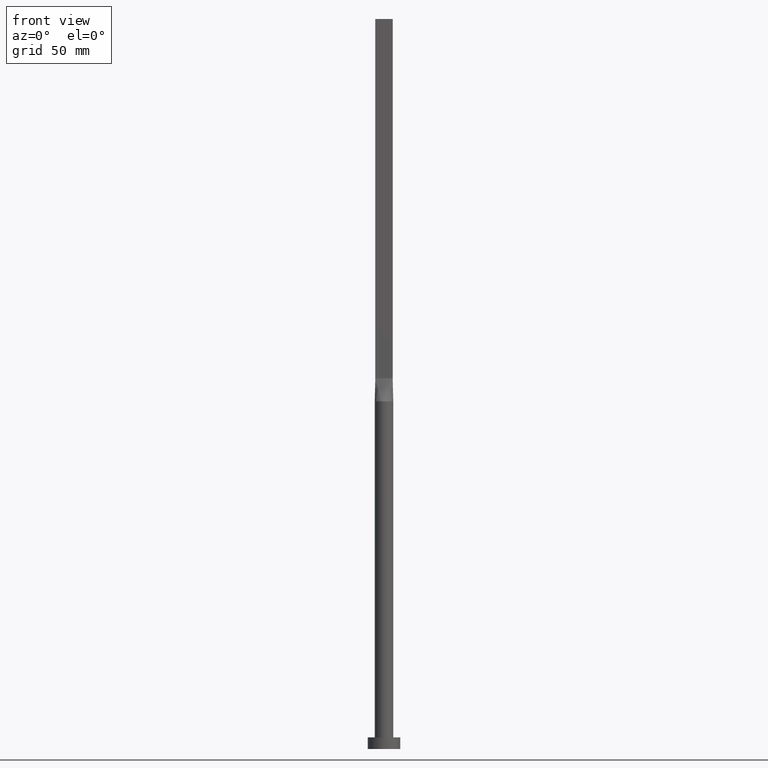
[diagram: clean part render]
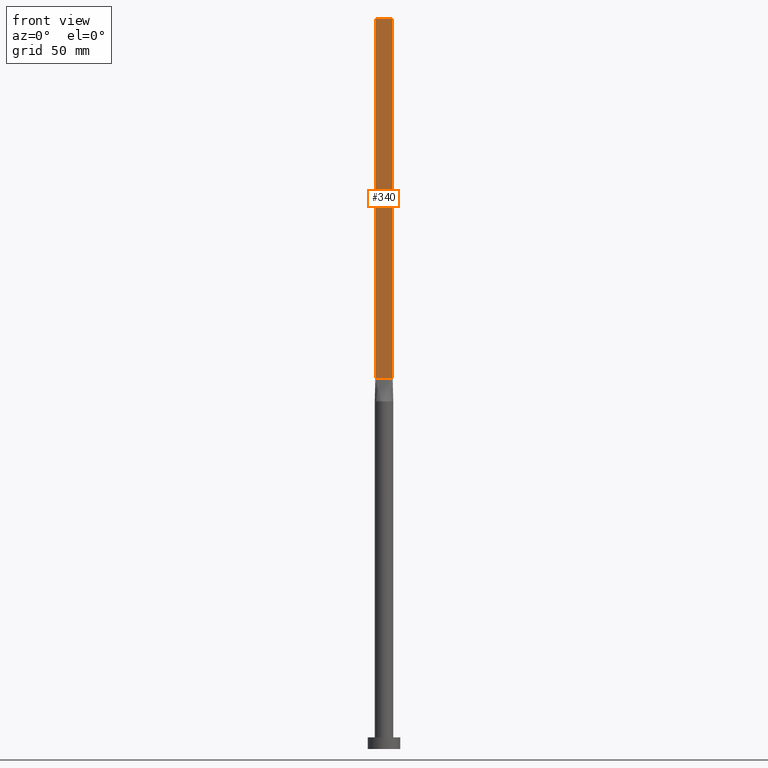
[diagram: same view with one face highlighted and labeled with its STEP entity id]
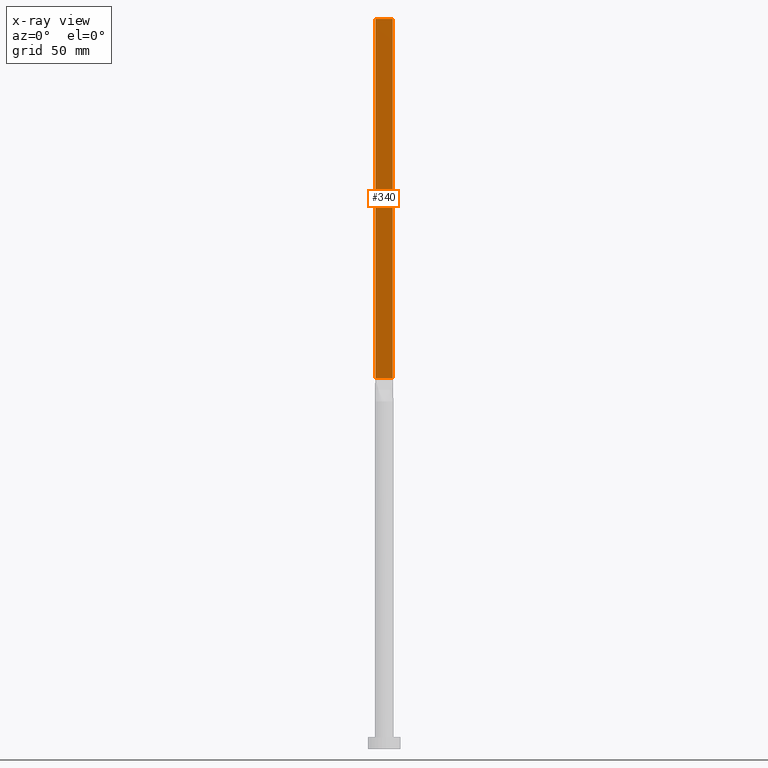
[diagram: x-ray of the same camera — body ghosted, the highlighted face saturated]
A machine part, front view. The second image highlights one B-rep face of the part: STEP entity #340.
The next image is the same camera in x-ray: the body ghosted, the highlighted face saturated — about 0% of this face is hidden behind the body in this view.
In plain terms, the highlighted planar face has unit normal (0, 1, -0).
Its self-contained STEP definition (entity closure, byte-faithful):
#6 = ORIENTED_EDGE ( 'NONE', *, *, #313, .T. ) ;
#21 = VERTEX_POINT ( 'NONE', #71 ) ;
#22 = VECTOR ( 'NONE', #526, 1000.000000000000000 ) ;
#27 = DIRECTION ( 'NONE',  ( -1.000000000000000000, 5.782411586589357392E-17, 0.000000000000000000 ) ) ;
#41 = LINE ( 'NONE', #312, #277 ) ;
#52 = PLANE ( 'NONE',  #545 ) ;
#71 = CARTESIAN_POINT ( 'NONE',  ( -3.750000000000000000, -0.5999999999999993117, 160.0000000000000000 ) ) ;
#84 = CARTESIAN_POINT ( 'NONE',  ( 3.750000000000000000, -0.5999999999999997558, 315.0000000000000000 ) ) ;
#110 = VERTEX_POINT ( 'NONE', #304 ) ;
#153 = VERTEX_POINT ( 'NONE', #351 ) ;
#154 = EDGE_CURVE ( 'NONE', #21, #153, #480, .T. ) ;
#172 = DIRECTION ( 'NONE',  ( -0.000000000000000000, -0.000000000000000000, -1.000000000000000000 ) ) ;
#181 = EDGE_LOOP ( 'NONE', ( #421, #318, #429, #6 ) ) ;
#201 = CARTESIAN_POINT ( 'NONE',  ( -3.750000000000000000, -0.5999999999999993117, 315.0000000000000000 ) ) ;
#257 = DIRECTION ( 'NONE',  ( 1.000000000000000000, -5.782411586589357392E-17, 0.000000000000000000 ) ) ;
#262 = DIRECTION ( 'NONE',  ( 5.782411586589357392E-17, 1.000000000000000000, -0.000000000000000000 ) ) ;
#277 = VECTOR ( 'NONE', #496, 1000.000000000000000 ) ;
#304 = CARTESIAN_POINT ( 'NONE',  ( 3.750000000000000000, -0.5999999999999997558, 315.0000000000000000 ) ) ;
#312 = CARTESIAN_POINT ( 'NONE',  ( -3.750000000000000000, -0.5999999999999993117, 315.0000000000000000 ) ) ;
#313 = EDGE_CURVE ( 'NONE', #439, #21, #41, .T. ) ;
#318 = ORIENTED_EDGE ( 'NONE', *, *, #427, .F. ) ;
#331 = VECTOR ( 'NONE', #257, 1000.000000000000000 ) ;
#340 = ADVANCED_FACE ( 'NONE', ( #510 ), #52, .F. ) ;
#351 = CARTESIAN_POINT ( 'NONE',  ( 3.750000000000000000, -0.5999999999999997558, 160.0000000000000000 ) ) ;
#353 = CARTESIAN_POINT ( 'NONE',  ( -3.750000000000000000, -0.5999999999999993117, 160.0000000000000000 ) ) ;
#421 = ORIENTED_EDGE ( 'NONE', *, *, #154, .T. ) ;
#422 = EDGE_CURVE ( 'NONE', #439, #110, #534, .T. ) ;
#427 = EDGE_CURVE ( 'NONE', #110, #153, #488, .T. ) ;
#429 = ORIENTED_EDGE ( 'NONE', *, *, #422, .F. ) ;
#432 = VECTOR ( 'NONE', #172, 1000.000000000000000 ) ;
#439 = VERTEX_POINT ( 'NONE', #201 ) ;
#480 = LINE ( 'NONE', #353, #331 ) ;
#485 = CARTESIAN_POINT ( 'NONE',  ( -3.750000000000000000, -0.5999999999999993117, 315.0000000000000000 ) ) ;
#488 = LINE ( 'NONE', #84, #432 ) ;
#496 = DIRECTION ( 'NONE',  ( -0.000000000000000000, -0.000000000000000000, -1.000000000000000000 ) ) ;
#510 = FACE_OUTER_BOUND ( 'NONE', #181, .T. ) ;
#526 = DIRECTION ( 'NONE',  ( 1.000000000000000000, -5.782411586589357392E-17, 0.000000000000000000 ) ) ;
#534 = LINE ( 'NONE', #485, #22 ) ;
#545 = AXIS2_PLACEMENT_3D ( 'NONE', #572, #262, #27 ) ;
#572 = CARTESIAN_POINT ( 'NONE',  ( -3.750000000000000000, -0.5999999999999993117, 315.0000000000000000 ) ) ;